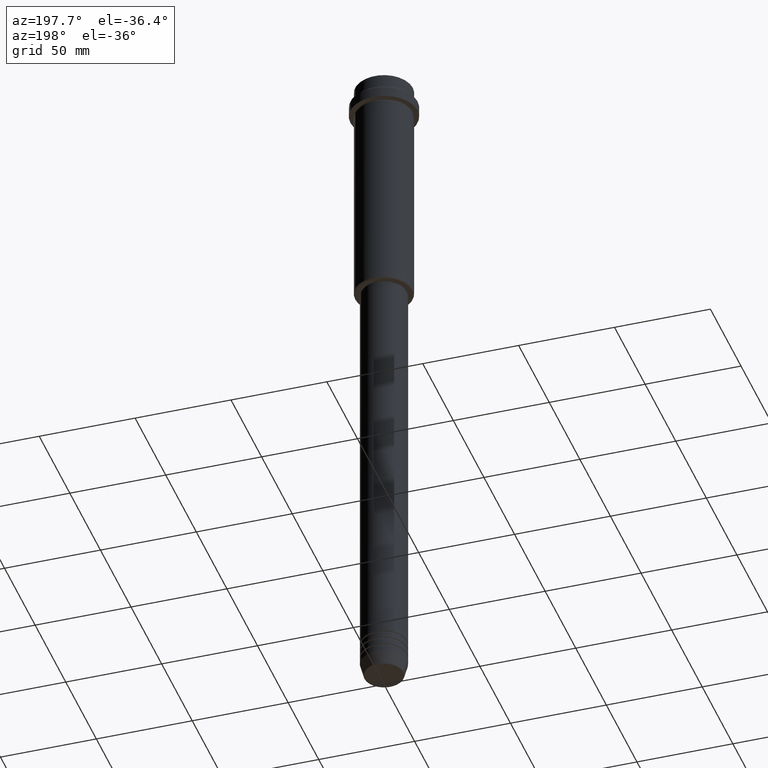
[diagram: clean part render]
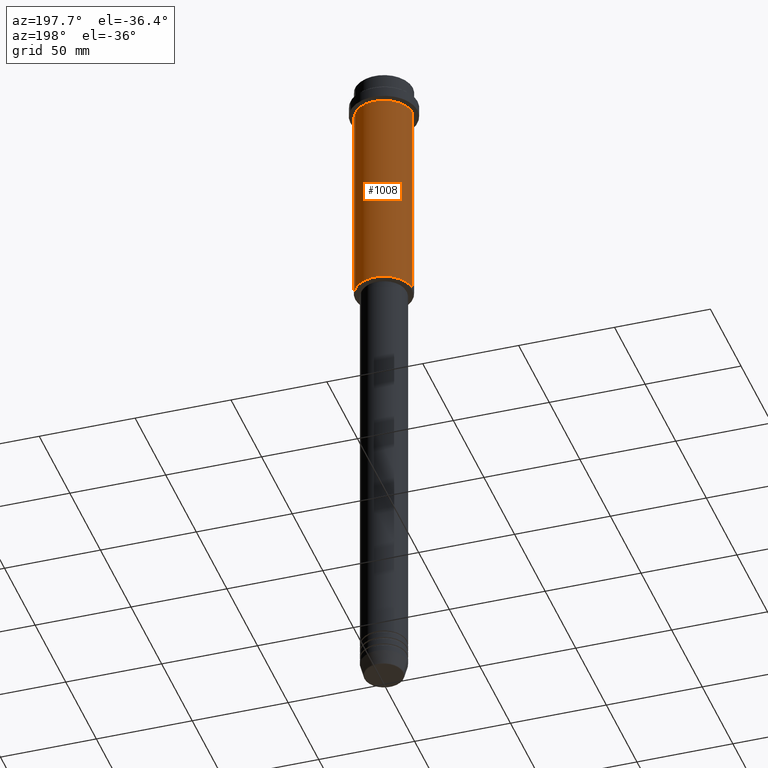
[diagram: same view with one face highlighted and labeled with its STEP entity id]
A machine part, auxiliary view. The second image highlights one B-rep face of the part: STEP entity #1008.
In plain terms, the highlighted cylindrical surface (edge-blend (fillet) strip) has radius 15 mm, axis along (-0, -0, 1).
Its self-contained STEP definition (entity closure, byte-faithful):
#38 = CARTESIAN_POINT ( 'NONE',  ( 15.00000000000000000, 0.000000000000000000, -124.4999999999999432 ) ) ;
#57 = DIRECTION ( 'NONE',  ( -0.000000000000000000, -0.000000000000000000, 1.000000000000000000 ) ) ;
#64 = AXIS2_PLACEMENT_3D ( 'NONE', #860, #1193, #876 ) ;
#75 = VECTOR ( 'NONE', #138, 1000.000000000000000 ) ;
#138 = DIRECTION ( 'NONE',  ( -0.000000000000000000, -0.000000000000000000, 1.000000000000000000 ) ) ;
#169 = VERTEX_POINT ( 'NONE', #209 ) ;
#182 = CARTESIAN_POINT ( 'NONE',  ( 0.000000000000000000, 0.000000000000000000, -16.00000000000000000 ) ) ;
#209 = CARTESIAN_POINT ( 'NONE',  ( -15.00000000000000000, 1.836970198721029589E-15, -124.4999999999999432 ) ) ;
#228 = VERTEX_POINT ( 'NONE', #1411 ) ;
#318 = ORIENTED_EDGE ( 'NONE', *, *, #946, .F. ) ;
#352 = AXIS2_PLACEMENT_3D ( 'NONE', #182, #1283, #621 ) ;
#425 = FACE_OUTER_BOUND ( 'NONE', #847, .T. ) ;
#426 = ORIENTED_EDGE ( 'NONE', *, *, #939, .F. ) ;
#546 = CIRCLE ( 'NONE', #1301, 15.00000000000000000 ) ;
#621 = DIRECTION ( 'NONE',  ( 1.000000000000000000, 0.000000000000000000, 0.000000000000000000 ) ) ;
#744 = ORIENTED_EDGE ( 'NONE', *, *, #1331, .T. ) ;
#827 = LINE ( 'NONE', #930, #1236 ) ;
#847 = EDGE_LOOP ( 'NONE', ( #744, #990, #426, #318 ) ) ;
#860 = CARTESIAN_POINT ( 'NONE',  ( 0.000000000000000000, 0.000000000000000000, 0.000000000000000000 ) ) ;
#863 = EDGE_CURVE ( 'NONE', #169, #1043, #1115, .T. ) ;
#868 = CIRCLE ( 'NONE', #352, 15.00000000000000178 ) ;
#876 = DIRECTION ( 'NONE',  ( 1.000000000000000000, 0.000000000000000000, 0.000000000000000000 ) ) ;
#904 = CARTESIAN_POINT ( 'NONE',  ( -15.00000000000000000, 1.836970198721029589E-15, 0.000000000000000000 ) ) ;
#930 = CARTESIAN_POINT ( 'NONE',  ( 15.00000000000000000, 0.000000000000000000, 0.000000000000000000 ) ) ;
#934 = DIRECTION ( 'NONE',  ( -1.000000000000000000, 0.000000000000000000, 0.000000000000000000 ) ) ;
#939 = EDGE_CURVE ( 'NONE', #228, #1043, #868, .T. ) ;
#946 = EDGE_CURVE ( 'NONE', #1216, #228, #827, .T. ) ;
#986 = CARTESIAN_POINT ( 'NONE',  ( -15.00000000000000355, 1.836970198721029983E-15, -16.00000000000000000 ) ) ;
#990 = ORIENTED_EDGE ( 'NONE', *, *, #863, .T. ) ;
#1008 = ADVANCED_FACE ( 'NONE', ( #425 ), #1398, .T. ) ;
#1043 = VERTEX_POINT ( 'NONE', #986 ) ;
#1115 = LINE ( 'NONE', #904, #75 ) ;
#1193 = DIRECTION ( 'NONE',  ( -0.000000000000000000, -0.000000000000000000, 1.000000000000000000 ) ) ;
#1216 = VERTEX_POINT ( 'NONE', #38 ) ;
#1236 = VECTOR ( 'NONE', #1357, 1000.000000000000000 ) ;
#1283 = DIRECTION ( 'NONE',  ( -0.000000000000000000, -0.000000000000000000, 1.000000000000000000 ) ) ;
#1301 = AXIS2_PLACEMENT_3D ( 'NONE', #1356, #57, #934 ) ;
#1331 = EDGE_CURVE ( 'NONE', #1216, #169, #546, .T. ) ;
#1356 = CARTESIAN_POINT ( 'NONE',  ( 0.000000000000000000, 0.000000000000000000, -124.4999999999999432 ) ) ;
#1357 = DIRECTION ( 'NONE',  ( -0.000000000000000000, -0.000000000000000000, 1.000000000000000000 ) ) ;
#1398 = CYLINDRICAL_SURFACE ( 'NONE', #64, 15.00000000000000000 ) ;
#1411 = CARTESIAN_POINT ( 'NONE',  ( 15.00000000000000178, 0.000000000000000000, -16.00000000000000000 ) ) ;